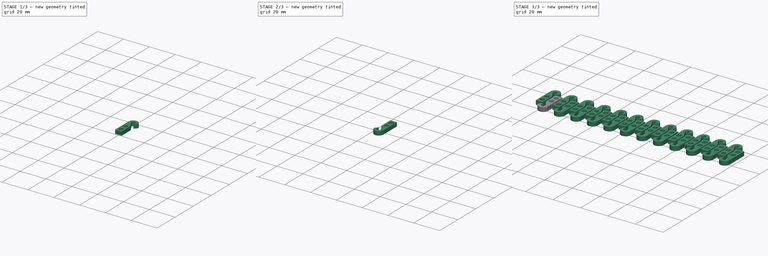
[diagram: build sequence overview — one tinted view per stage of 3, left to right]
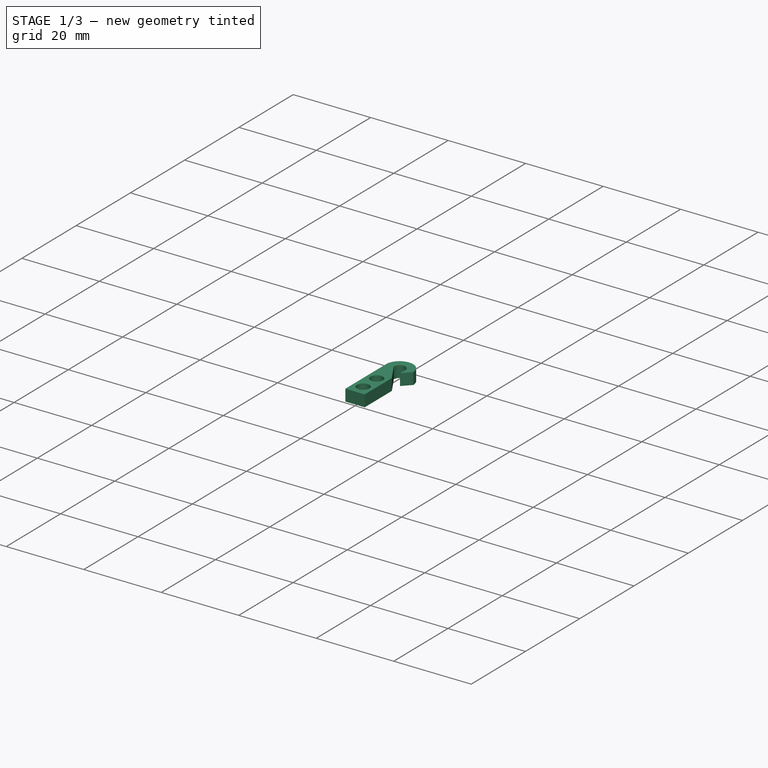
[diagram: stage 1 of 3 — iso view after this stage's code; geometry added in this stage tinted green]
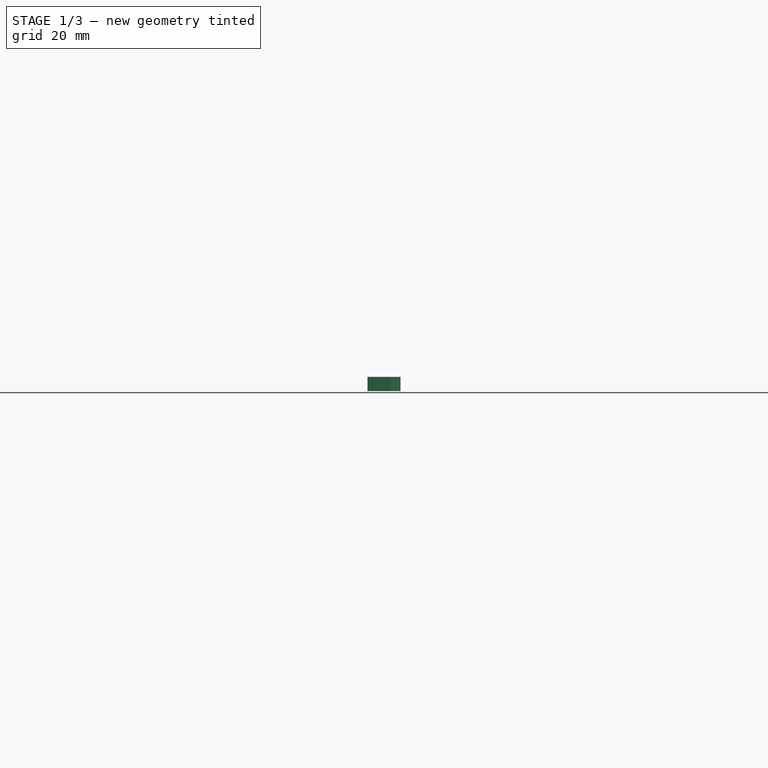
[diagram: stage 1 of 3 — front view after this stage's code; geometry added in this stage tinted green]
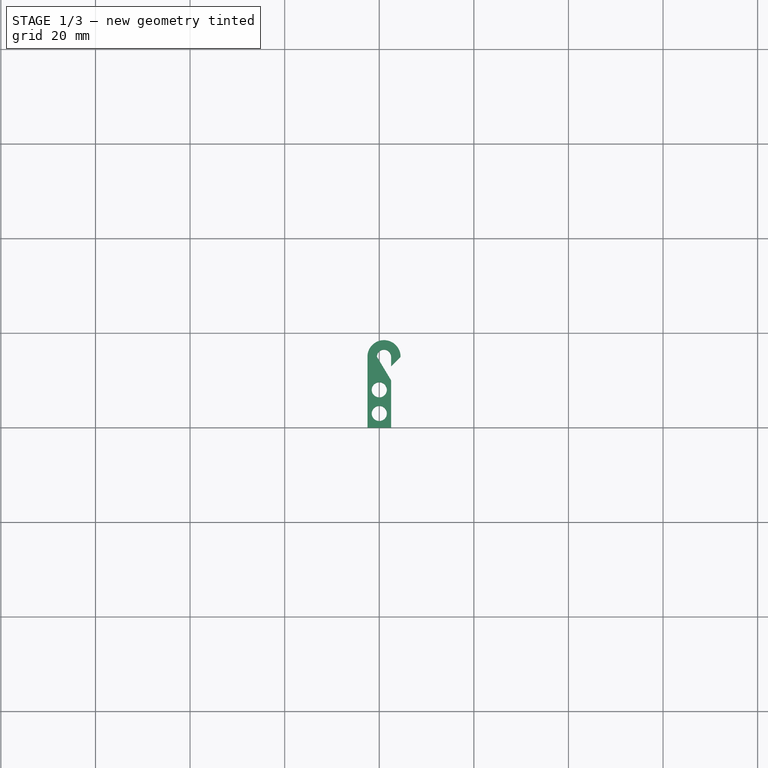
[diagram: stage 1 of 3 — top view after this stage's code; geometry added in this stage tinted green]
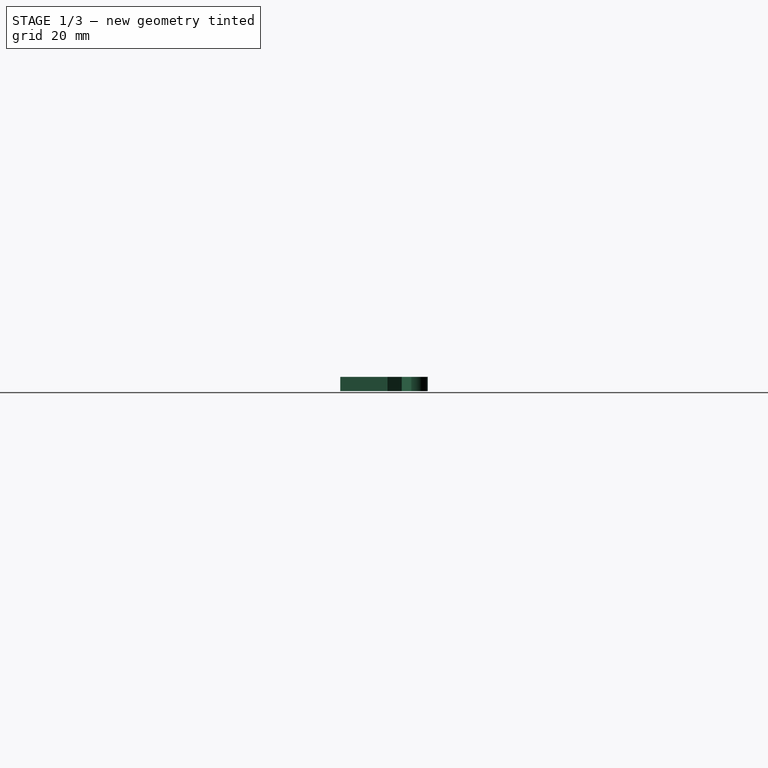
[diagram: stage 1 of 3 — right view after this stage's code; geometry added in this stage tinted green]
FCSTD DOCUMENT  (FreeCAD 0.16RUnknown)
Label: weighthooks
License: All rights reserved
LicenseURL: http://en.wikipedia.org/wiki/All_rights_reserved
objects: Sketcher::SketchObject×2, Part::FeaturePython×2, PartDesign::Pad×1, PartDesign::Pocket×1, Part::MultiFuse×1
note: 9 computed .brp shape members not serialized (recipe doc carries the construction recipe); baked Part::Feature solids carry a one-line shape summary decoded from their .brp

FEATURE [Sketcher::SketchObject] Sketch  label="outer"
  sketch-geometry (12):
    g0: LineSegment StartX=2.5 StartY=0 StartZ=0 EndX=-2.5 EndY=0 EndZ=0
    g1: LineSegment StartX=-2.5 StartY=0 StartZ=0 EndX=-2.5 EndY=15 EndZ=0
    g2: ArcOfCircle CenterX=1 CenterY=15 CenterZ=0 NormalX=0 NormalY=0 NormalZ=1 Radius=3.5 StartAngle=0 EndAngle=3.14159
    g3: LineSegment StartX=4.5 StartY=15 StartZ=0 EndX=2.5 EndY=13 EndZ=0
    g4: LineSegment StartX=2.5 StartY=13 StartZ=0 EndX=2.5 EndY=15 EndZ=0
    g5: ArcOfCircle CenterX=1 CenterY=15 CenterZ=0 NormalX=0 NormalY=0 NormalZ=1 Radius=1.5 StartAngle=0 EndAngle=3.14159
    g6: LineSegment [constr] StartX=2.5 StartY=15 StartZ=0 EndX=4.5 EndY=15 EndZ=0
    g7: LineSegment [constr] StartX=2.5 StartY=13 StartZ=0 EndX=3.5 EndY=15 EndZ=0
    g8: LineSegment [constr] StartX=-0.5 StartY=15 StartZ=0 EndX=2.5 EndY=15 EndZ=0
    g9: LineSegment [constr] StartX=-0.5 StartY=15 StartZ=0 EndX=-2.5 EndY=15 EndZ=0
    g10: LineSegment StartX=2.5 StartY=0 StartZ=0 EndX=2.5 EndY=10 EndZ=0
    g11: LineSegment StartX=2.5 StartY=10 StartZ=0 EndX=-0.5 EndY=15 EndZ=0
  constraints (34):
    c: Coincident(g0,g1)
    c: Vertical(g1)
    c: Tangent(g1,g2) = 1.5708
    c: Coincident(g2,g3)
    c: Coincident(g3,g4)
    c: Coincident(g5,g4)
    c: Horizontal(g0)
    c: Symmetric(g0,g0,g-2)
    c: Coincident(g6,g4)
    c: Coincident(g6,g2)
    c: Horizontal(g6)
    c: Coincident(g7,g3)
    c: PointOnObject(g7,g6)
    c: Symmetric(g2,g4,g7)
    c: DistanceY(g3,g4) = 2
    c: Coincident(g8,g4)
    c: Horizontal(g8)
    c: PointOnObject(g5,g8)
    c: DistanceY(g1,g1) = 15
    c: DistanceX(g8,g8) = 3
    c: DistanceX(g6,g6) = 2
    c: Coincident(g9,g1)
    c: Horizontal(g9)
    c: Equal(g9,g6)
    c: Coincident(g9,g8)
    c: Coincident(g10,g0)
    c: Vertical(g10)
    c: Coincident(g11,g10)
    c: Coincident(g11,g8)
    c: Coincident(g5,g8)
    c: PointOnObject(g0,g-1)
    c: DistanceY(g10,g10) = 10
    c: DistanceX(g0,g0) = 5
    c: Vertical(g4)
FEATURE [PartDesign::Pad] Pad
  Length = 3
  Length2 = 100
  Sketch = -> Sketch
  Type = 0
FEATURE [Sketcher::SketchObject] Sketch001  label="holes"
  ExternalGeometry = -> [Pad]
  Placement = pos=(0,0,3) rot=(0,0,1;0rad)
  Support = -> Pad [Face10]
  sketch-geometry (2):
    g0: Circle CenterX=0 CenterY=3 CenterZ=0 NormalX=0 NormalY=0 NormalZ=1 Radius=1.6
    g1: Circle CenterX=0 CenterY=8 CenterZ=0 NormalX=0 NormalY=0 NormalZ=1 Radius=1.6
  constraints (6):
    c: PointOnObject(g0,g-2)
    c: PointOnObject(g1,g-2)
    c: Radius(g1) = 1.6
    c: Equal(g1,g0)
    c: DistanceY(g0,g1) = 5
    c: DistanceY(g1,g-3) = 2
FEATURE [PartDesign::Pocket] Pocket  label="single[stl]"
  Length = 5
  Sketch = -> Sketch001
  Type = 1
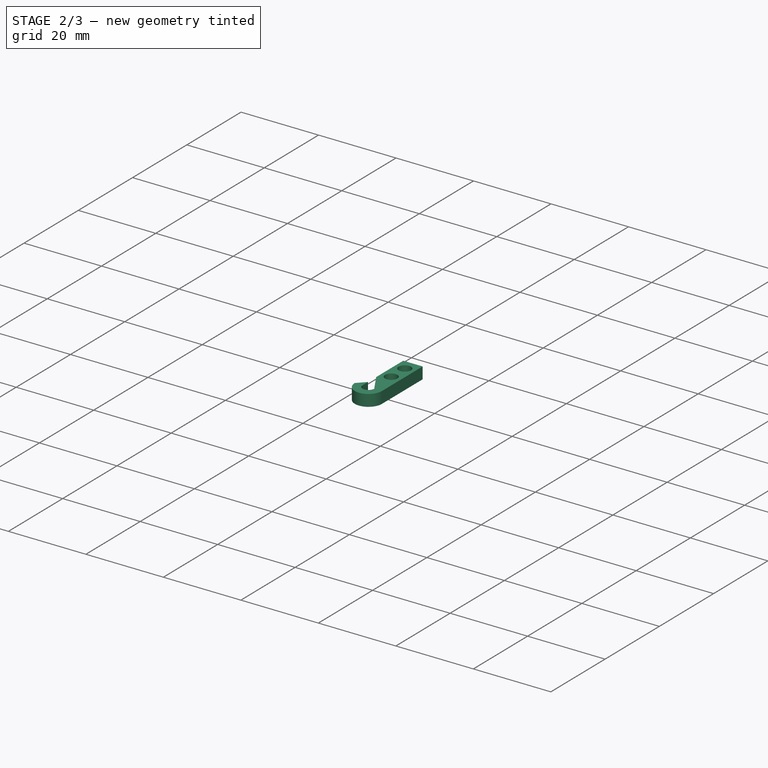
[diagram: stage 2 of 3 — iso view after this stage's code; geometry added in this stage tinted green]
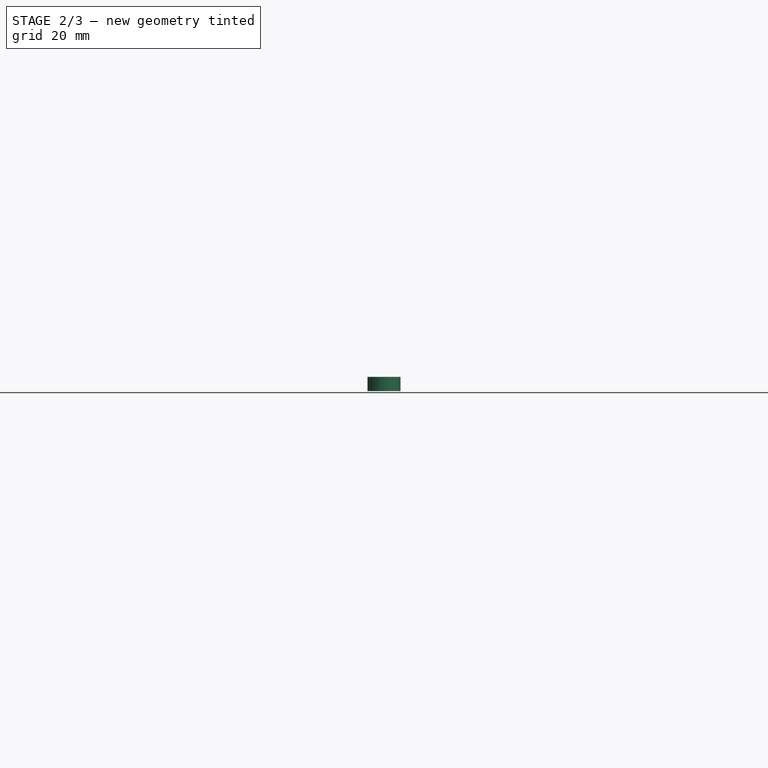
[diagram: stage 2 of 3 — front view after this stage's code; geometry added in this stage tinted green]
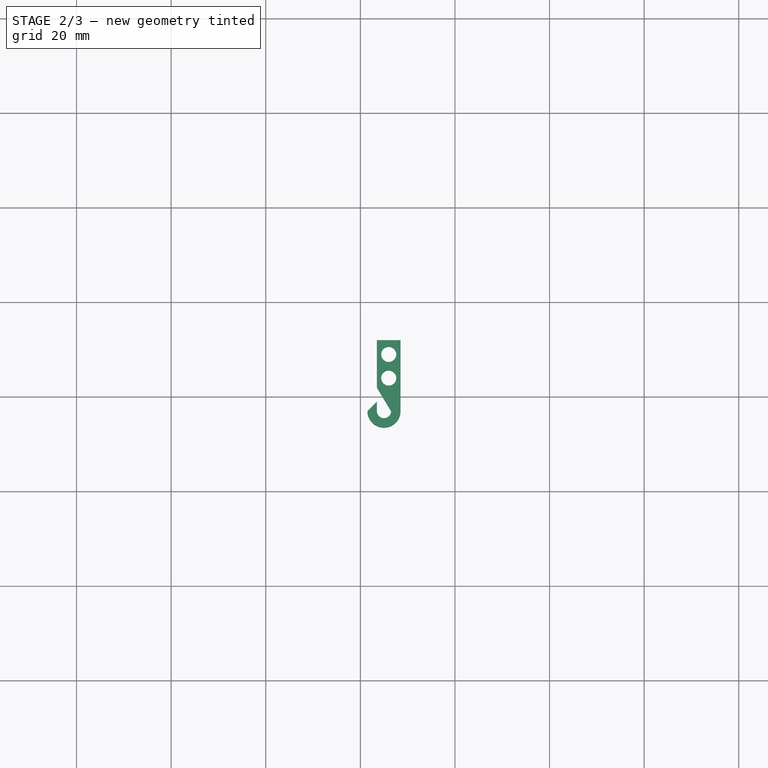
[diagram: stage 2 of 3 — top view after this stage's code; geometry added in this stage tinted green]
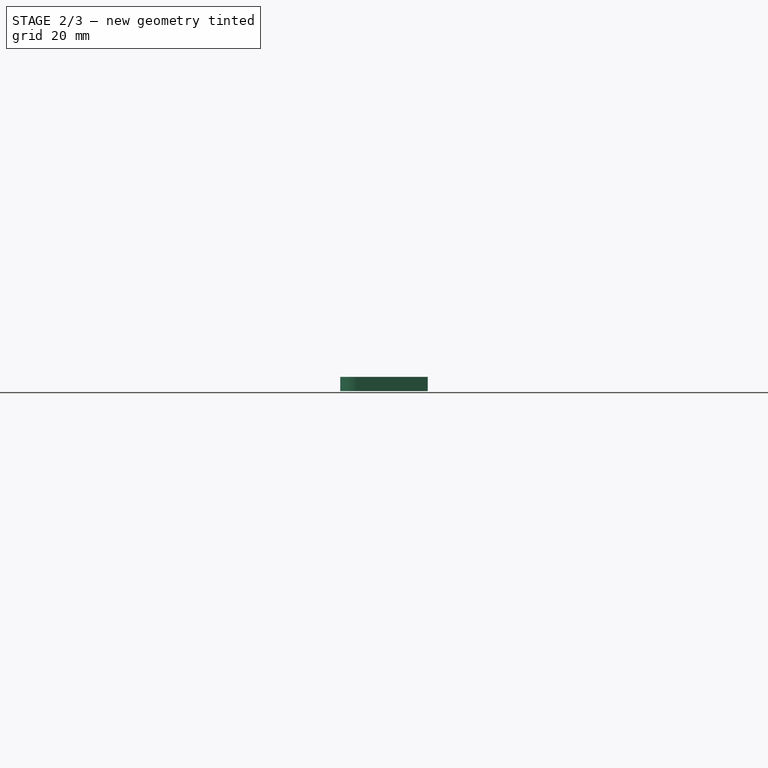
[diagram: stage 2 of 3 — right view after this stage's code; geometry added in this stage tinted green]
FEATURE [Part::FeaturePython] Clone  label="Clone of Pocket"  # Draft clone (typed FeaturePython)
  Objects = -> [Pocket]
  Placement = pos=(6,12,0) rot=(0,0,1;3.14159rad)
  Scale = (1,1,1)
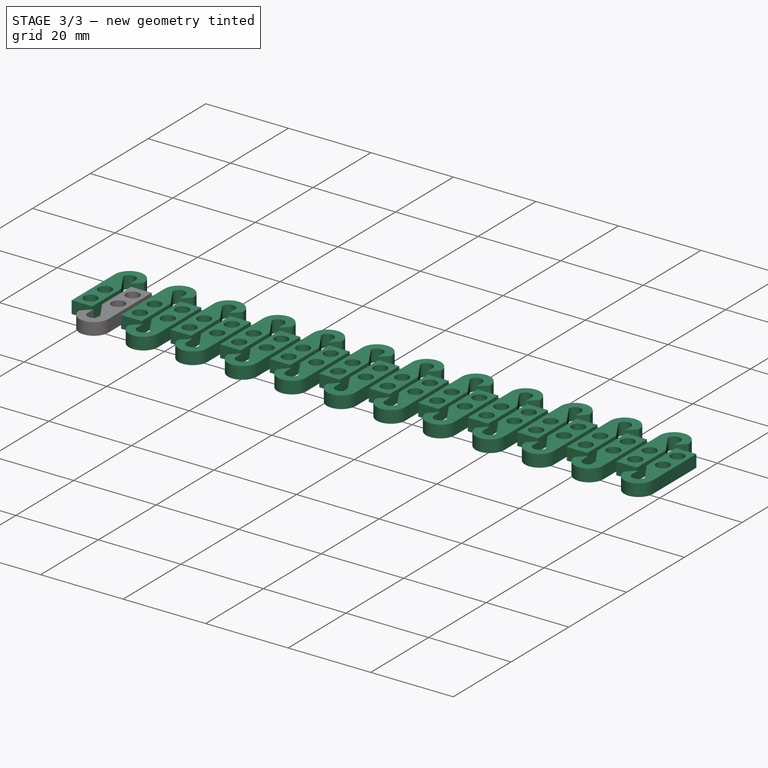
[diagram: stage 3 of 3 — iso view after this stage's code; geometry added in this stage tinted green]
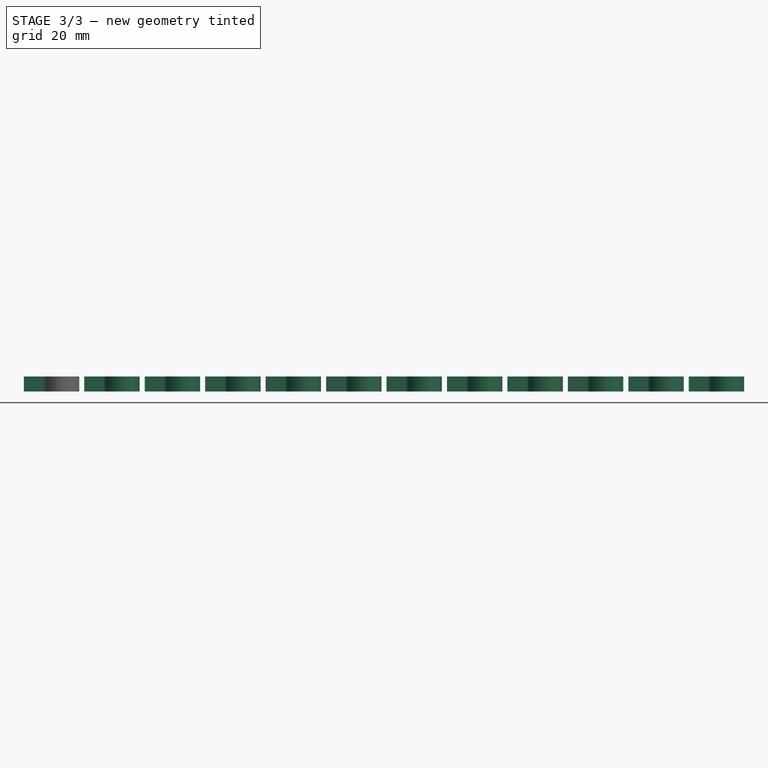
[diagram: stage 3 of 3 — front view after this stage's code; geometry added in this stage tinted green]
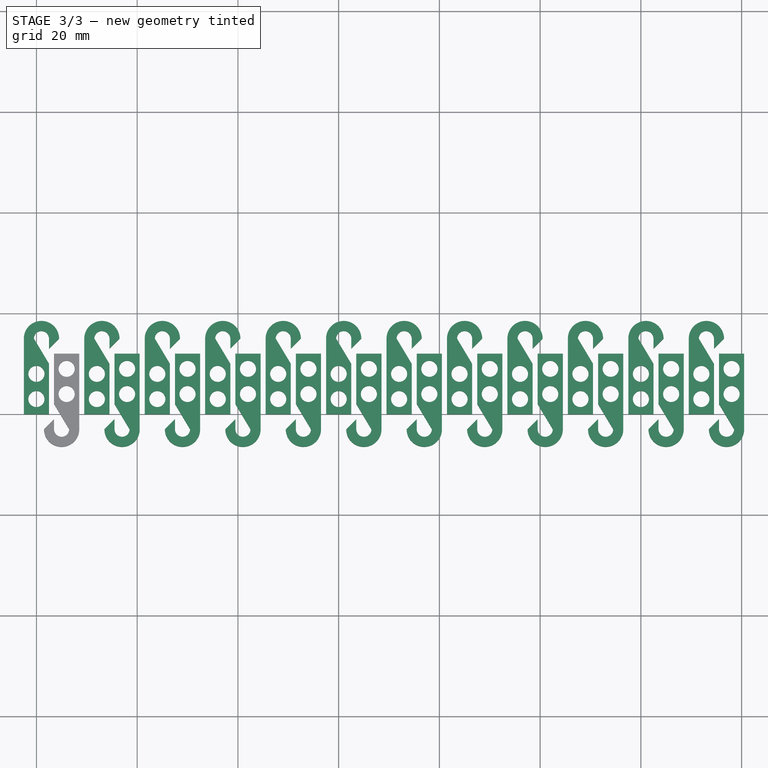
[diagram: stage 3 of 3 — top view after this stage's code; geometry added in this stage tinted green]
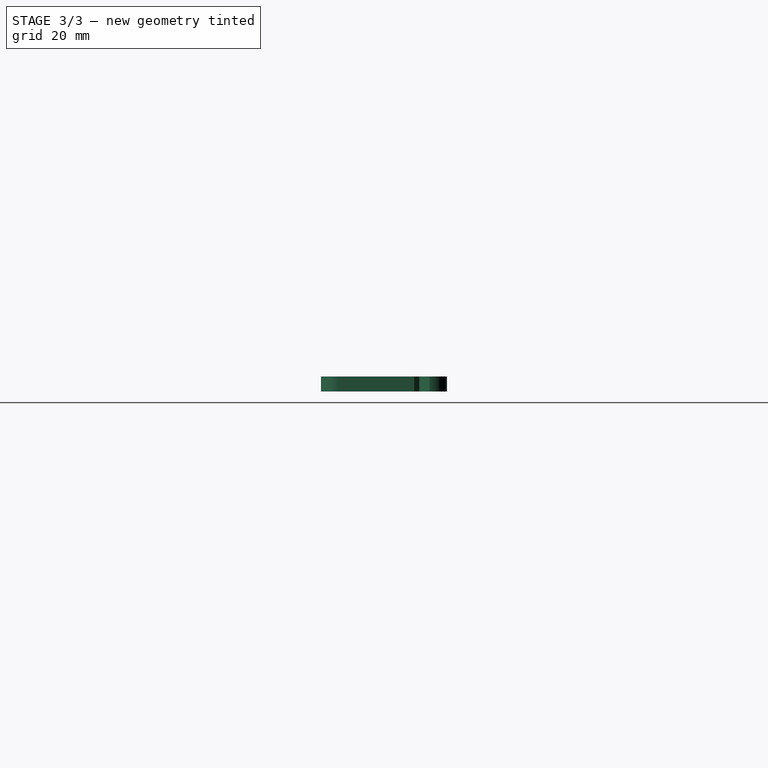
[diagram: stage 3 of 3 — right view after this stage's code; geometry added in this stage tinted green]
FEATURE [Part::MultiFuse] Fusion
  Shapes = -> [Clone,Pocket]
FEATURE [Part::FeaturePython] Array  label="2x12[stl]"  # Draft array (typed FeaturePython)
  Angle = 360
  ArrayType = 0
  Axis = (0,0,1)
  Base = -> Fusion
  Center = (0,0,0)
  Fuse = false
  IntervalAxis = (0,0,0)
  IntervalX = (12,0,0)
  IntervalY = (0,1,0)
  IntervalZ = (0,0,0)
  NumberPolar = 1
  NumberX = 12
  NumberY = 1
  NumberZ = 1
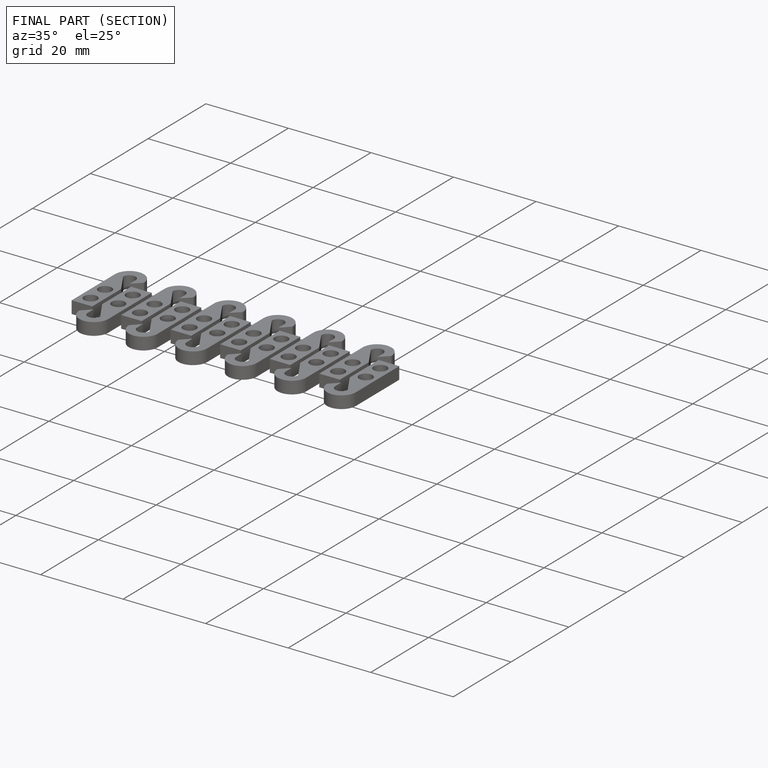
[diagram: finished part — half-section view (interior)]
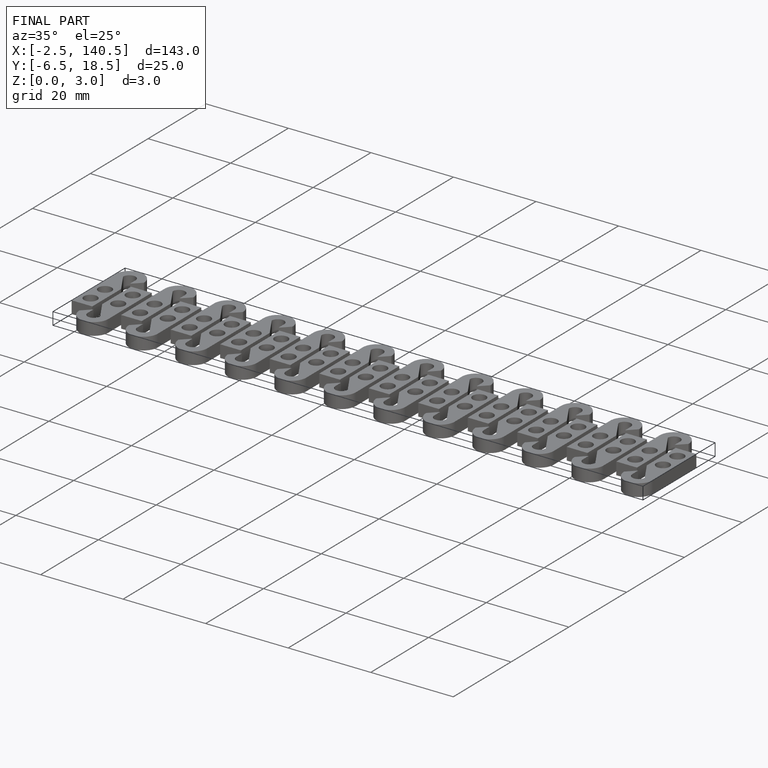
[diagram: finished part — iso view with bounding-box wireframe]
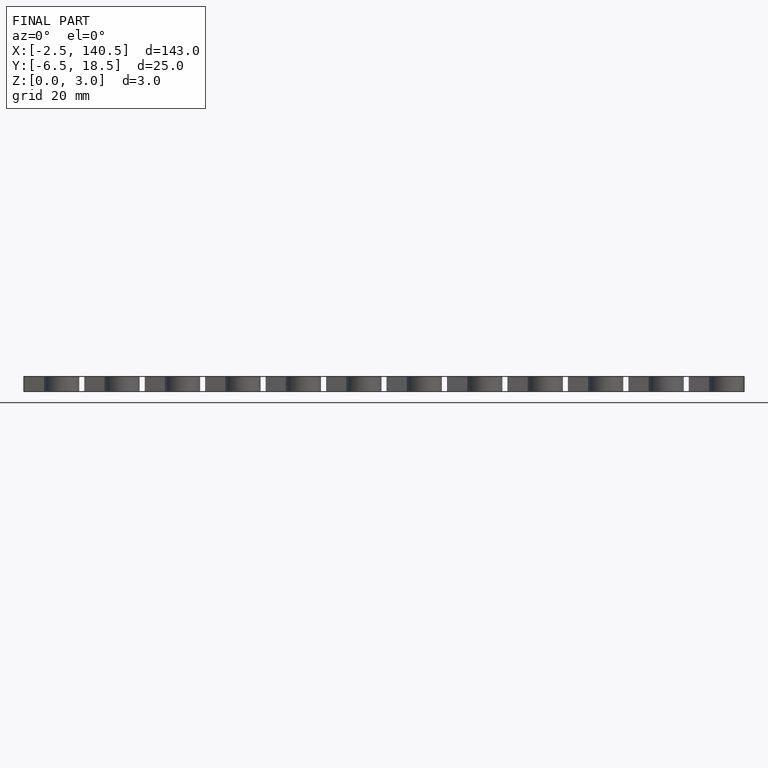
[diagram: finished part — front view with bounding-box wireframe]
